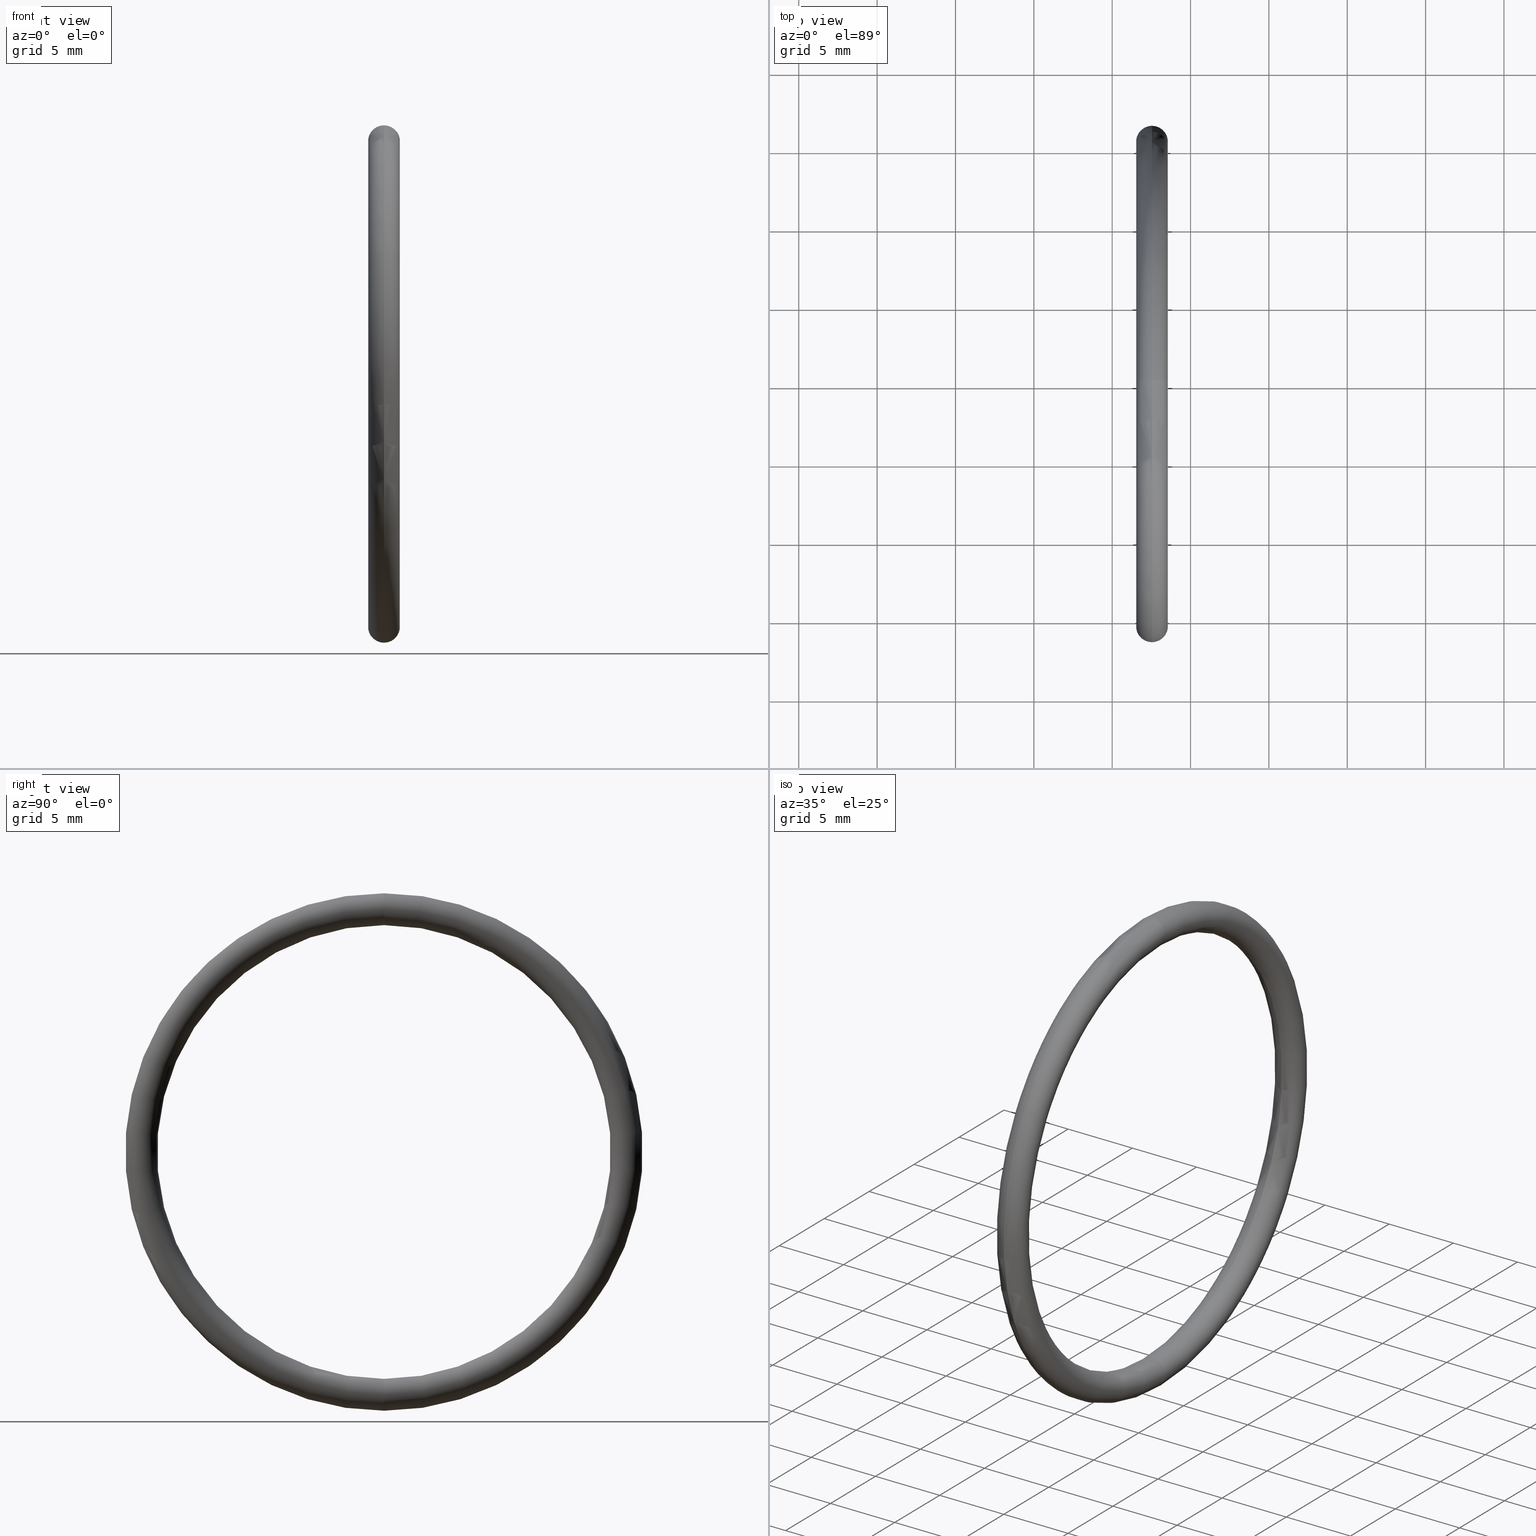
[diagram: canonical four-view strip — front | top / right | iso, engineering-drawing reading convention]
A machine part, canonical four-view strip (front | top / right | iso — engineering-drawing reading convention). The complete STEP part file that produces these views, byte-faithful:
ISO-10303-21;
HEADER;
FILE_DESCRIPTION (( 'STEP AP203' ),
    '1' );
FILE_NAME ('OM-32-VT.STEP',
    '2008-08-18T12:13:15',
    ( 'BSI05' ),
    ( 'BAYSTATE' ),
    'SwSTEP 2.0',
    'SolidWorks 2007',
    '' );
FILE_SCHEMA (( 'CONFIG_CONTROL_DESIGN' ));
ENDSEC;

DATA;
#1 = ORIENTED_EDGE ( 'NONE', *, *, #53, .T. ) ;
#2 = ORIENTED_EDGE ( 'NONE', *, *, #3, .F. ) ;
#3 = EDGE_CURVE ( 'NONE', #20, #48, #14, .T. ) ;
#4 = FACE_OUTER_BOUND ( 'NONE', #24, .T. ) ;
#5 = CARTESIAN_POINT ( 'NONE',  ( 0.1000000000000000700, 0.0000000000000000000, 0.5699999999999999500 ) ) ;
#6 = DIRECTION ( 'NONE',  ( 0.0000000000000000000, 0.0000000000000000000, -1.000000000000000000 ) ) ;
#7 = DIRECTION ( 'NONE',  ( 0.0000000000000000000, -1.000000000000000000, 0.0000000000000000000 ) ) ;
#8 = AXIS2_PLACEMENT_3D ( 'NONE', #15, #7, #6 ) ;
#9 = CIRCLE ( 'NONE', #8, 0.03999999999999998000 ) ;
#10 = DIRECTION ( 'NONE',  ( 0.0000000000000000000, 0.0000000000000000000, 1.000000000000000000 ) ) ;
#11 = DIRECTION ( 'NONE',  ( -1.000000000000000000, 0.0000000000000000000, 0.0000000000000000000 ) ) ;
#12 = CARTESIAN_POINT ( 'NONE',  ( 0.1000000000000000700, 0.0000000000000000000, 0.0000000000000000000 ) ) ;
#13 = AXIS2_PLACEMENT_3D ( 'NONE', #12, #11, #10 ) ;
#14 = CIRCLE ( 'NONE', #13, 0.5699999999999999500 ) ;
#15 = CARTESIAN_POINT ( 'NONE',  ( 0.1000000000000000700, 0.0000000000000000000, 0.6099999999999998800 ) ) ;
#16 = ORIENTED_EDGE ( 'NONE', *, *, #59, .T. ) ;
#17 = EDGE_LOOP ( 'NONE', ( #27, #28, #1, #2 ) ) ;
#18 = EDGE_LOOP ( 'NONE', ( #52, #29, #32, #21 ) ) ;
#19 = EDGE_CURVE ( 'NONE', #31, #20, #9, .T. ) ;
#20 = VERTEX_POINT ( 'NONE', #5 ) ;
#21 = ORIENTED_EDGE ( 'NONE', *, *, #47, .F. ) ;
#22 = CLOSED_SHELL ( 'NONE', ( #56, #26, #23, #63 ) ) ;
#23 = ADVANCED_FACE ( 'NONE', ( #4 ), #46, .T. ) ;
#24 = EDGE_LOOP ( 'NONE', ( #57, #58, #60, #61 ) ) ;
#25 = EDGE_CURVE ( 'NONE', #31, #54, #41, .T. ) ;
#26 = ADVANCED_FACE ( 'NONE', ( #36 ), #35, .T. ) ;
#27 = ORIENTED_EDGE ( 'NONE', *, *, #19, .F. ) ;
#28 = ORIENTED_EDGE ( 'NONE', *, *, #25, .T. ) ;
#29 = ORIENTED_EDGE ( 'NONE', *, *, #30, .T. ) ;
#30 = EDGE_CURVE ( 'NONE', #54, #31, #70, .T. ) ;
#31 = VERTEX_POINT ( 'NONE', #78 ) ;
#32 = ORIENTED_EDGE ( 'NONE', *, *, #19, .T. ) ;
#33 = CARTESIAN_POINT ( 'NONE',  ( 0.1000000000000000700, 0.0000000000000000000, 0.0000000000000000000 ) ) ;
#34 = AXIS2_PLACEMENT_3D ( 'NONE', #33, #79, #84 ) ;
#35 = TOROIDAL_SURFACE ( 'NONE', #34, 0.6099999999999998800, 0.04000000000000000100 ) ;
#36 = FACE_OUTER_BOUND ( 'NONE', #17, .T. ) ;
#37 = DIRECTION ( 'NONE',  ( 0.0000000000000000000, 0.0000000000000000000, 1.000000000000000000 ) ) ;
#38 = DIRECTION ( 'NONE',  ( -1.000000000000000000, 0.0000000000000000000, 0.0000000000000000000 ) ) ;
#39 = CARTESIAN_POINT ( 'NONE',  ( 0.1000000000000000700, 0.0000000000000000000, 0.0000000000000000000 ) ) ;
#40 = AXIS2_PLACEMENT_3D ( 'NONE', #39, #38, #37 ) ;
#41 = CIRCLE ( 'NONE', #40, 0.6499999999999999100 ) ;
#42 = DIRECTION ( 'NONE',  ( 0.0000000000000000000, 0.0000000000000000000, 1.000000000000000000 ) ) ;
#43 = DIRECTION ( 'NONE',  ( -1.000000000000000000, 0.0000000000000000000, 0.0000000000000000000 ) ) ;
#44 = CARTESIAN_POINT ( 'NONE',  ( 0.1000000000000000700, 0.0000000000000000000, 0.0000000000000000000 ) ) ;
#45 = AXIS2_PLACEMENT_3D ( 'NONE', #44, #43, #42 ) ;
#46 = TOROIDAL_SURFACE ( 'NONE', #45, 0.6099999999999998800, 0.04000000000000000100 ) ;
#47 = EDGE_CURVE ( 'NONE', #48, #20, #83, .T. ) ;
#48 = VERTEX_POINT ( 'NONE', #66 ) ;
#49 = ORIENTED_EDGE ( 'NONE', *, *, #30, .F. ) ;
#50 = ORIENTED_EDGE ( 'NONE', *, *, #62, .F. ) ;
#51 = ORIENTED_EDGE ( 'NONE', *, *, #47, .T. ) ;
#52 = ORIENTED_EDGE ( 'NONE', *, *, #53, .F. ) ;
#53 = EDGE_CURVE ( 'NONE', #54, #48, #65, .T. ) ;
#54 = VERTEX_POINT ( 'NONE', #159 ) ;
#55 = MANIFOLD_SOLID_BREP ( 'NONE', #22 ) ;
#56 = ADVANCED_FACE ( 'NONE', ( #158 ), #157, .T. ) ;
#57 = ORIENTED_EDGE ( 'NONE', *, *, #25, .F. ) ;
#58 = ORIENTED_EDGE ( 'NONE', *, *, #59, .F. ) ;
#59 = EDGE_CURVE ( 'NONE', #20, #31, #152, .T. ) ;
#60 = ORIENTED_EDGE ( 'NONE', *, *, #3, .T. ) ;
#61 = ORIENTED_EDGE ( 'NONE', *, *, #62, .T. ) ;
#62 = EDGE_CURVE ( 'NONE', #48, #54, #136, .T. ) ;
#63 = ADVANCED_FACE ( 'NONE', ( #132 ), #130, .T. ) ;
#64 = EDGE_LOOP ( 'NONE', ( #49, #50, #51, #16 ) ) ;
#65 = CIRCLE ( 'NONE', #163, 0.03999999999999998000 ) ;
#66 = CARTESIAN_POINT ( 'NONE',  ( 0.1000000000000000700, 6.980486755139912600E-017, -0.5699999999999999500 ) ) ;
#67 = DIRECTION ( 'NONE',  ( 0.0000000000000000000, 0.0000000000000000000, 1.000000000000000000 ) ) ;
#68 = DIRECTION ( 'NONE',  ( -1.000000000000000000, 0.0000000000000000000, 0.0000000000000000000 ) ) ;
#69 = CARTESIAN_POINT ( 'NONE',  ( 0.1000000000000000700, 0.0000000000000000000, 0.0000000000000000000 ) ) ;
#70 = CIRCLE ( 'NONE', #77, 0.6499999999999999100 ) ;
#71 = DIRECTION ( 'NONE',  ( 0.0000000000000000000, 0.0000000000000000000, -1.000000000000000000 ) ) ;
#72 = DIRECTION ( 'NONE',  ( 0.0000000000000000000, -1.000000000000000000, 0.0000000000000000000 ) ) ;
#73 = CARTESIAN_POINT ( 'NONE',  ( 0.1000000000000000700, 0.0000000000000000000, 0.6099999999999998800 ) ) ;
#74 = AXIS2_PLACEMENT_3D ( 'NONE', #73, #72, #71 ) ;
#75 = CARTESIAN_POINT ( 'NONE',  ( 0.1000000000000000700, 7.470345474798854000E-017, -0.6099999999999998800 ) ) ;
#76 = CARTESIAN_POINT ( 'NONE',  ( 0.1000000000000000700, 0.0000000000000000000, 0.0000000000000000000 ) ) ;
#77 = AXIS2_PLACEMENT_3D ( 'NONE', #76, #81, #80 ) ;
#78 = CARTESIAN_POINT ( 'NONE',  ( 0.1000000000000000700, 0.0000000000000000000, 0.6499999999999999100 ) ) ;
#79 = DIRECTION ( 'NONE',  ( -1.000000000000000000, 0.0000000000000000000, 0.0000000000000000000 ) ) ;
#80 = DIRECTION ( 'NONE',  ( 0.0000000000000000000, 0.0000000000000000000, 1.000000000000000000 ) ) ;
#81 = DIRECTION ( 'NONE',  ( -1.000000000000000000, 0.0000000000000000000, 0.0000000000000000000 ) ) ;
#82 = AXIS2_PLACEMENT_3D ( 'NONE', #69, #68, #67 ) ;
#83 = CIRCLE ( 'NONE', #82, 0.5699999999999999500 ) ;
#84 = DIRECTION ( 'NONE',  ( 0.0000000000000000000, 0.0000000000000000000, 1.000000000000000000 ) ) ;
#85 = PERSON_AND_ORGANIZATION ( #148, #147 ) ;
#86 = CC_DESIGN_DATE_AND_TIME_ASSIGNMENT ( #88, #87, ( #95 ) ) ;
#87 = DATE_TIME_ROLE ( 'classification_date' ) ;
#88 = DATE_AND_TIME ( #89, #90 ) ;
#89 = CALENDAR_DATE ( 2008, 18, 8 ) ;
#90 = LOCAL_TIME ( 17, 43, 15.00000000000000000, #91 ) ;
#91 = COORDINATED_UNIVERSAL_TIME_OFFSET ( 5, 30, .AHEAD. ) ;
#92 = CC_DESIGN_PERSON_AND_ORGANIZATION_ASSIGNMENT ( #94, #93, ( #95 ) ) ;
#93 = PERSON_AND_ORGANIZATION_ROLE ( 'classification_officer' ) ;
#94 = PERSON_AND_ORGANIZATION ( #148, #147 ) ;
#95 = SECURITY_CLASSIFICATION ( '', '', #96 ) ;
#96 = SECURITY_CLASSIFICATION_LEVEL ( 'unclassified' ) ;
#97 = CC_DESIGN_PERSON_AND_ORGANIZATION_ASSIGNMENT ( #99, #98, ( #114 ) ) ;
#98 = PERSON_AND_ORGANIZATION_ROLE ( 'design_supplier' ) ;
#99 = PERSON_AND_ORGANIZATION ( #148, #147 ) ;
#100 = CC_DESIGN_PERSON_AND_ORGANIZATION_ASSIGNMENT ( #102, #101, ( #114 ) ) ;
#101 = PERSON_AND_ORGANIZATION_ROLE ( 'creator' ) ;
#102 = PERSON_AND_ORGANIZATION ( #148, #147 ) ;
#103 = CC_DESIGN_APPROVAL ( #111, ( #114 ) ) ;
#104 = APPROVAL_DATE_TIME ( #105, #111 ) ;
#105 = DATE_AND_TIME ( #106, #107 ) ;
#106 = CALENDAR_DATE ( 2008, 18, 8 ) ;
#107 = LOCAL_TIME ( 17, 43, 15.00000000000000000, #108 ) ;
#108 = COORDINATED_UNIVERSAL_TIME_OFFSET ( 5, 30, .AHEAD. ) ;
#109 = APPROVAL_PERSON_ORGANIZATION ( #113, #111, #110 ) ;
#110 = APPROVAL_ROLE ( '' ) ;
#111 = APPROVAL ( #112, 'UNSPECIFIED' ) ;
#112 = APPROVAL_STATUS ( 'not_yet_approved' ) ;
#113 = PERSON_AND_ORGANIZATION ( #148, #147 ) ;
#114 = PRODUCT_DEFINITION_FORMATION_WITH_SPECIFIED_SOURCE ( 'ANY', '', #149, .NOT_KNOWN. ) ;
#115 = CC_DESIGN_DATE_AND_TIME_ASSIGNMENT ( #117, #116, ( #179 ) ) ;
#116 = DATE_TIME_ROLE ( 'creation_date' ) ;
#117 = DATE_AND_TIME ( #118, #119 ) ;
#118 = CALENDAR_DATE ( 2008, 18, 8 ) ;
#119 = LOCAL_TIME ( 17, 43, 15.00000000000000000, #164 ) ;
#120 = AXIS2_PLACEMENT_3D ( 'NONE', #141, #123, #122 ) ;
#121 = SHAPE_DEFINITION_REPRESENTATION ( #184, #124 ) ;
#122 = DIRECTION ( 'NONE',  ( 1.000000000000000000, 0.0000000000000000000, 0.0000000000000000000 ) ) ;
#123 = DIRECTION ( 'NONE',  ( 0.0000000000000000000, 0.0000000000000000000, 1.000000000000000000 ) ) ;
#124 = ADVANCED_BREP_SHAPE_REPRESENTATION ( 'OM-32-VT', ( #55, #120 ), #125 ) ;
#125 =( GEOMETRIC_REPRESENTATION_CONTEXT ( 3 ) GLOBAL_UNCERTAINTY_ASSIGNED_CONTEXT ( ( #126 ) ) GLOBAL_UNIT_ASSIGNED_CONTEXT ( ( #129, #128, #127 ) ) REPRESENTATION_CONTEXT ( 'NONE', 'WORKASPACE' ) );
#126 = UNCERTAINTY_MEASURE_WITH_UNIT (LENGTH_MEASURE( 1.000000000000000100E-005 ), #129, 'distance_accuracy_value', 'NONE');
#127 =( NAMED_UNIT ( * ) SI_UNIT ( $, .STERADIAN. ) SOLID_ANGLE_UNIT ( ) );
#128 =( NAMED_UNIT ( * ) PLANE_ANGLE_UNIT ( ) SI_UNIT ( $, .RADIAN. ) );
#129 =( CONVERSION_BASED_UNIT ( 'INCH', #138 ) LENGTH_UNIT ( ) NAMED_UNIT ( #139 ) );
#130 = TOROIDAL_SURFACE ( 'NONE', #131, 0.6099999999999998800, 0.04000000000000000100 ) ;
#131 = AXIS2_PLACEMENT_3D ( 'NONE', #144, #143, #142 ) ;
#132 = FACE_OUTER_BOUND ( 'NONE', #64, .T. ) ;
#133 = DIRECTION ( 'NONE',  ( 0.0000000000000000000, -1.224646799147354900E-016, 1.000000000000000000 ) ) ;
#134 = DIRECTION ( 'NONE',  ( 0.0000000000000000000, 1.000000000000000000, 1.224646799147353200E-016 ) ) ;
#135 = AXIS2_PLACEMENT_3D ( 'NONE', #75, #134, #133 ) ;
#136 = CIRCLE ( 'NONE', #135, 0.03999999999999998000 ) ;
#137 = APPLICATION_CONTEXT ( 'configuration controlled 3d designs of mechanical parts and assemblies' ) ;
#138 = LENGTH_MEASURE_WITH_UNIT ( LENGTH_MEASURE( 0.02539999999999999900 ), #140 );
#139 = DIMENSIONAL_EXPONENTS ( 1.000000000000000000, 0.0000000000000000000, 0.0000000000000000000, 0.0000000000000000000, 0.0000000000000000000, 0.0000000000000000000, 0.0000000000000000000 ) ;
#140 =( LENGTH_UNIT ( ) NAMED_UNIT ( * ) SI_UNIT ( $, .METRE. ) );
#141 = CARTESIAN_POINT ( 'NONE',  ( 0.0000000000000000000, 0.0000000000000000000, 0.0000000000000000000 ) ) ;
#142 = DIRECTION ( 'NONE',  ( 0.0000000000000000000, 0.0000000000000000000, 1.000000000000000000 ) ) ;
#143 = DIRECTION ( 'NONE',  ( -1.000000000000000000, 0.0000000000000000000, 0.0000000000000000000 ) ) ;
#144 = CARTESIAN_POINT ( 'NONE',  ( 0.1000000000000000700, 0.0000000000000000000, 0.0000000000000000000 ) ) ;
#145 = PERSON_AND_ORGANIZATION_ROLE ( 'design_owner' ) ;
#146 = PERSON_AND_ORGANIZATION ( #148, #147 ) ;
#147 = ORGANIZATION ( 'UNSPECIFIED', 'UNSPECIFIED', '' ) ;
#148 = PERSON ( 'UNSPECIFIED', 'UNSPECIFIED', 'UNSPECIFIED', ('UNSPECIFIED'), ('UNSPECIFIED'), ('UNSPECIFIED') ) ;
#149 = PRODUCT ( 'OM-32-VT', 'OM-32-VT', '', ( #150 ) ) ;
#150 = MECHANICAL_CONTEXT ( 'NONE', #137, 'mechanical' ) ;
#151 = APPLICATION_PROTOCOL_DEFINITION ( 'international standard', 'config_control_design', 1994, #137 ) ;
#152 = CIRCLE ( 'NONE', #74, 0.03999999999999998000 ) ;
#153 = DIRECTION ( 'NONE',  ( 0.0000000000000000000, 0.0000000000000000000, 1.000000000000000000 ) ) ;
#154 = DIRECTION ( 'NONE',  ( -1.000000000000000000, 0.0000000000000000000, 0.0000000000000000000 ) ) ;
#155 = CARTESIAN_POINT ( 'NONE',  ( 0.1000000000000000700, 0.0000000000000000000, 0.0000000000000000000 ) ) ;
#156 = AXIS2_PLACEMENT_3D ( 'NONE', #155, #154, #153 ) ;
#157 = TOROIDAL_SURFACE ( 'NONE', #156, 0.6099999999999998800, 0.04000000000000000100 ) ;
#158 = FACE_OUTER_BOUND ( 'NONE', #18, .T. ) ;
#159 = CARTESIAN_POINT ( 'NONE',  ( 0.1000000000000000700, 7.960204194457794200E-017, -0.6499999999999999100 ) ) ;
#160 = DIRECTION ( 'NONE',  ( 0.0000000000000000000, -1.224646799147354900E-016, 1.000000000000000000 ) ) ;
#161 = DIRECTION ( 'NONE',  ( 0.0000000000000000000, 1.000000000000000000, 1.224646799147353200E-016 ) ) ;
#162 = CARTESIAN_POINT ( 'NONE',  ( 0.1000000000000000700, 7.470345474798854000E-017, -0.6099999999999998800 ) ) ;
#163 = AXIS2_PLACEMENT_3D ( 'NONE', #162, #161, #160 ) ;
#164 = COORDINATED_UNIVERSAL_TIME_OFFSET ( 5, 30, .AHEAD. ) ;
#165 = CC_DESIGN_PERSON_AND_ORGANIZATION_ASSIGNMENT ( #167, #166, ( #179 ) ) ;
#166 = PERSON_AND_ORGANIZATION_ROLE ( 'creator' ) ;
#167 = PERSON_AND_ORGANIZATION ( #148, #147 ) ;
#168 = CC_DESIGN_APPROVAL ( #176, ( #179 ) ) ;
#169 = APPROVAL_DATE_TIME ( #170, #176 ) ;
#170 = DATE_AND_TIME ( #171, #172 ) ;
#171 = CALENDAR_DATE ( 2008, 18, 8 ) ;
#172 = LOCAL_TIME ( 17, 43, 15.00000000000000000, #173 ) ;
#173 = COORDINATED_UNIVERSAL_TIME_OFFSET ( 5, 30, .AHEAD. ) ;
#174 = APPROVAL_PERSON_ORGANIZATION ( #178, #176, #175 ) ;
#175 = APPROVAL_ROLE ( '' ) ;
#176 = APPROVAL ( #177, 'UNSPECIFIED' ) ;
#177 = APPROVAL_STATUS ( 'not_yet_approved' ) ;
#178 = PERSON_AND_ORGANIZATION ( #148, #147 ) ;
#179 = PRODUCT_DEFINITION ( 'UNKNOWN', '', #114, #180 ) ;
#180 = DESIGN_CONTEXT ( 'detailed design', #182, 'design' ) ;
#181 = APPLICATION_PROTOCOL_DEFINITION ( 'international standard', 'config_control_design', 1994, #182 ) ;
#182 = APPLICATION_CONTEXT ( 'configuration controlled 3d designs of mechanical parts and assemblies' ) ;
#183 = CC_DESIGN_PERSON_AND_ORGANIZATION_ASSIGNMENT ( #146, #145, ( #149 ) ) ;
#184 = PRODUCT_DEFINITION_SHAPE ( 'NONE', 'NONE',  #179 ) ;
#185 = PRODUCT_RELATED_PRODUCT_CATEGORY ( 'detail', '', ( #149 ) ) ;
#186 = CC_DESIGN_SECURITY_CLASSIFICATION ( #95, ( #114 ) ) ;
#187 = CC_DESIGN_APPROVAL ( #195, ( #95 ) ) ;
#188 = APPROVAL_DATE_TIME ( #189, #195 ) ;
#189 = DATE_AND_TIME ( #190, #191 ) ;
#190 = CALENDAR_DATE ( 2008, 18, 8 ) ;
#191 = LOCAL_TIME ( 17, 43, 15.00000000000000000, #192 ) ;
#192 = COORDINATED_UNIVERSAL_TIME_OFFSET ( 5, 30, .AHEAD. ) ;
#193 = APPROVAL_PERSON_ORGANIZATION ( #85, #195, #194 ) ;
#194 = APPROVAL_ROLE ( '' ) ;
#195 = APPROVAL ( #196, 'UNSPECIFIED' ) ;
#196 = APPROVAL_STATUS ( 'not_yet_approved' ) ;
ENDSEC;
END-ISO-10303-21;
